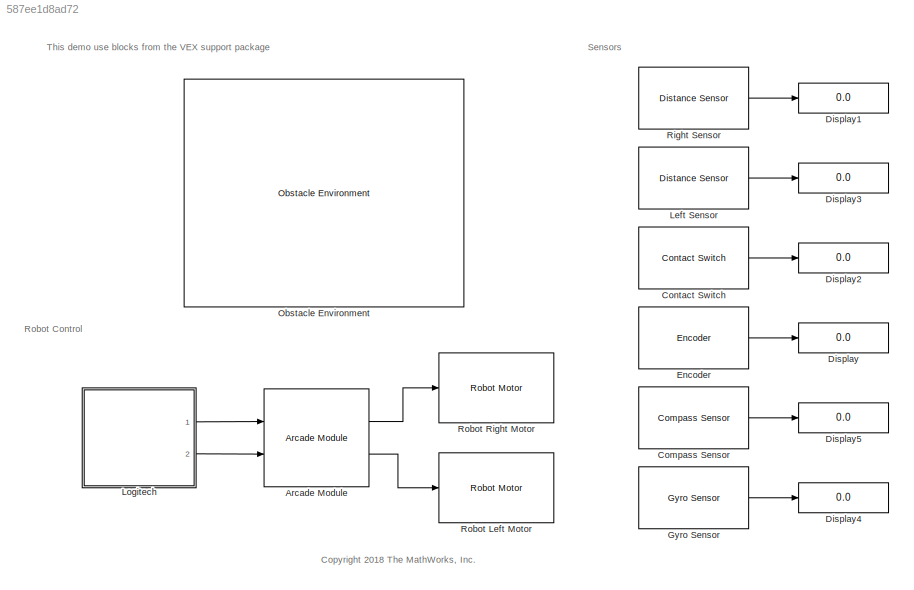
MODEL slx_587ee1d8ad72
KIND model
CONFIG AbsTol = auto
CONFIG EnableMultiTasking = on
CONFIG FixedStep = 0.01
CONFIG InitFcn = RPInit
CONFIG MaxStep = auto
CONFIG MinStep = auto
CONFIG RelTol = 1e-3
CONFIG SampleTimeConstraint = Unconstrained
CONFIG Solver = ode23t
CONFIG SolverName = ode23t
CONFIG StartTime = 0.0
CONFIG StopTime = inf
WORKSPACE source: mxarray member
WORKSPACE mapForSim: object (value not decoded)
WORKSPACE occGrid: robotics.BinaryOccupancyGrid (value not decoded)
BLOCK [Reference] Arcade Module  REF=vexcommonlib/Arcade Module
  Ports = [2, 2]
  SourceBlock = vexcommonlib/Arcade Module
  SourceProductBaseCode = EC_VEX_MICRO
  SourceProductName = Simulink Coder Support Package for ARM Cortex-based VEX Microcontroller
  SourceType = Arcade-2 Motors Module
BLOCK [Reference] Compass Sensor  REF=RoboticsPlayground/Basic Sensors and Actuators/Compass Sensor
  Ports = [0, 1]
  SourceBlock = RoboticsPlayground/Basic Sensors and Actuators/Compass Sensor
  SourceProductName = Robotics Playground
  SourceType = RP Compass Sensor
BLOCK [Reference] Contact Switch  REF=RoboticsPlayground/Basic Sensors and Actuators/Contact Switch
  Ports = [0, 1]
  SourceBlock = RoboticsPlayground/Basic Sensors and Actuators/Contact Switch
  SourceProductName = Robotics Playground
  SourceType = RP Contact Switch
BLOCK [Display] Display
  Decimation = 1
  Ports = [1]
BLOCK [Display] Display1
  Decimation = 1
  Ports = [1]
BLOCK [Display] Display2
  Decimation = 1
  Ports = [1]
BLOCK [Display] Display3
  Decimation = 1
  Ports = [1]
BLOCK [Display] Display4
  Decimation = 1
  Ports = [1]
BLOCK [Display] Display5
  Decimation = 1
  Ports = [1]
BLOCK [Reference] Encoder  REF=RoboticsPlayground/Basic Sensors and Actuators/Encoder
  Ports = [0, 1]
  SourceBlock = RoboticsPlayground/Basic Sensors and Actuators/Encoder
  SourceProductName = Robotics Playground
  SourceType = RP Motor Encoder
BLOCK [Reference] Gyro Sensor  REF=RoboticsPlayground/Basic Sensors and Actuators/Gyro Sensor
  Ports = [0, 1]
  SourceBlock = RoboticsPlayground/Basic Sensors and Actuators/Gyro Sensor
  SourceProductName = Robotics Playground
  SourceType = RP Gyro Sensor
BLOCK [Reference] Left Sensor  REF=RoboticsPlayground/Basic Sensors and Actuators/Distance Sensor
  Ports = [0, 1]
  SourceBlock = RoboticsPlayground/Basic Sensors and Actuators/Distance Sensor
  SourceProductName = Robotics Playground
  SourceType = RP Distance Sensor
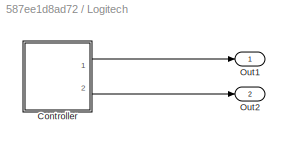
BLOCK [SubSystem] Logitech
  Ports = [0, 2]
  RequestExecContextInheritance = off
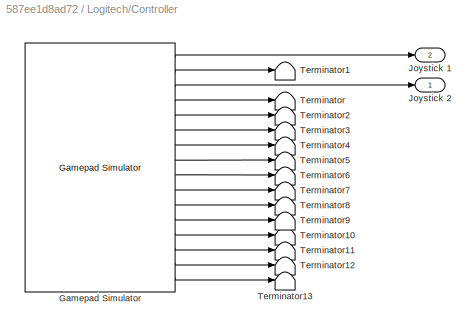
BLOCK [SubSystem] Logitech/Controller
  Ports = [0, 2]
  RequestExecContextInheritance = off
BLOCK [Reference] Logitech/Controller/Gamepad Simulator  REF=vexcommonlib/Gamepad Simulator
  Ports = [0, 16]
  SourceBlock = vexcommonlib/Gamepad Simulator
  SourceProductBaseCode = EC_VEX_MICRO
  SourceProductName = Simulink Coder Support Package for ARM Cortex-based VEX Microcontroller
  SourceType = Gamepad Simulator
BLOCK [Outport] Logitech/Controller/Joystick 1
  IconDisplay = Port number
  Port = 2
  VectorParamsAs1DForOutWhenUnconnected = off
BLOCK [Outport] Logitech/Controller/Joystick 2
  IconDisplay = Port number
  VectorParamsAs1DForOutWhenUnconnected = off
BLOCK [Terminator] Logitech/Controller/Terminator
BLOCK [Terminator] Logitech/Controller/Terminator1
BLOCK [Terminator] Logitech/Controller/Terminator10
BLOCK [Terminator] Logitech/Controller/Terminator11
BLOCK [Terminator] Logitech/Controller/Terminator12
BLOCK [Terminator] Logitech/Controller/Terminator13
BLOCK [Terminator] Logitech/Controller/Terminator2
BLOCK [Terminator] Logitech/Controller/Terminator3
BLOCK [Terminator] Logitech/Controller/Terminator4
BLOCK [Terminator] Logitech/Controller/Terminator5
BLOCK [Terminator] Logitech/Controller/Terminator6
BLOCK [Terminator] Logitech/Controller/Terminator7
BLOCK [Terminator] Logitech/Controller/Terminator8
BLOCK [Terminator] Logitech/Controller/Terminator9
BLOCK [Outport] Logitech/Out1
  IconDisplay = Port number
  VectorParamsAs1DForOutWhenUnconnected = off
BLOCK [Outport] Logitech/Out2
  IconDisplay = Port number
  Port = 2
  VectorParamsAs1DForOutWhenUnconnected = off
BLOCK [Reference] Obstacle Environment  REF=RoboticsPlayground/Environments/Obstacle Environment
  Ports = []
  SourceBlock = RoboticsPlayground/Environments/Obstacle Environment
  SourceProductName = Robotics Playground
  SourceType = RP Obstacle Environment
BLOCK [Reference] Right Sensor  REF=RoboticsPlayground/Basic Sensors and Actuators/Distance Sensor
  Ports = [0, 1]
  SourceBlock = RoboticsPlayground/Basic Sensors and Actuators/Distance Sensor
  SourceProductName = Robotics Playground
  SourceType = RP Distance Sensor
BLOCK [Reference] Robot Left Motor  REF=RoboticsPlayground/Basic Sensors and Actuators/Robot Motor
  Ports = [1]
  SourceBlock = RoboticsPlayground/Basic Sensors and Actuators/Robot Motor
  SourceProductName = Robotics Playground
  SourceType = RP Robot Motor
BLOCK [Reference] Robot Right Motor  REF=RoboticsPlayground/Basic Sensors and Actuators/Robot Motor
  Ports = [1]
  SourceBlock = RoboticsPlayground/Basic Sensors and Actuators/Robot Motor
  SourceProductName = Robotics Playground
  SourceType = RP Robot Motor
ANNOTATION (root): <copyright redacted>
ANNOTATION (root): This demo use blocks from the VEX support package
ANNOTATION (root): Robot Control
ANNOTATION (root): Sensors
LINE Arcade Module:1 -> Robot Right Motor:1
LINE Arcade Module:2 -> Robot Left Motor:1
LINE Compass Sensor:1 -> Display5:1
LINE Contact Switch:1 -> Display2:1
LINE Encoder:1 -> Display:1
LINE Gyro Sensor:1 -> Display4:1
LINE Left Sensor:1 -> Display3:1
LINE Logitech/Controller/Gamepad Simulator:1 -> Logitech/Controller/Joystick 1:1
LINE Logitech/Controller/Gamepad Simulator:10 -> Logitech/Controller/Terminator7:1
LINE Logitech/Controller/Gamepad Simulator:11 -> Logitech/Controller/Terminator8:1
LINE Logitech/Controller/Gamepad Simulator:12 -> Logitech/Controller/Terminator9:1
LINE Logitech/Controller/Gamepad Simulator:13 -> Logitech/Controller/Terminator10:1
LINE Logitech/Controller/Gamepad Simulator:14 -> Logitech/Controller/Terminator11:1
LINE Logitech/Controller/Gamepad Simulator:15 -> Logitech/Controller/Terminator12:1
LINE Logitech/Controller/Gamepad Simulator:16 -> Logitech/Controller/Terminator13:1
LINE Logitech/Controller/Gamepad Simulator:2 -> Logitech/Controller/Terminator1:1
LINE Logitech/Controller/Gamepad Simulator:3 -> Logitech/Controller/Joystick 2:1
LINE Logitech/Controller/Gamepad Simulator:4 -> Logitech/Controller/Terminator:1
LINE Logitech/Controller/Gamepad Simulator:5 -> Logitech/Controller/Terminator2:1
LINE Logitech/Controller/Gamepad Simulator:6 -> Logitech/Controller/Terminator3:1
LINE Logitech/Controller/Gamepad Simulator:7 -> Logitech/Controller/Terminator4:1
LINE Logitech/Controller/Gamepad Simulator:8 -> Logitech/Controller/Terminator5:1
LINE Logitech/Controller/Gamepad Simulator:9 -> Logitech/Controller/Terminator6:1
LINE Logitech/Controller:1 -> Logitech/Out1:1
LINE Logitech/Controller:2 -> Logitech/Out2:1
LINE Logitech:1 -> Arcade Module:1
LINE Logitech:2 -> Arcade Module:2
LINE Right Sensor:1 -> Display1:1
